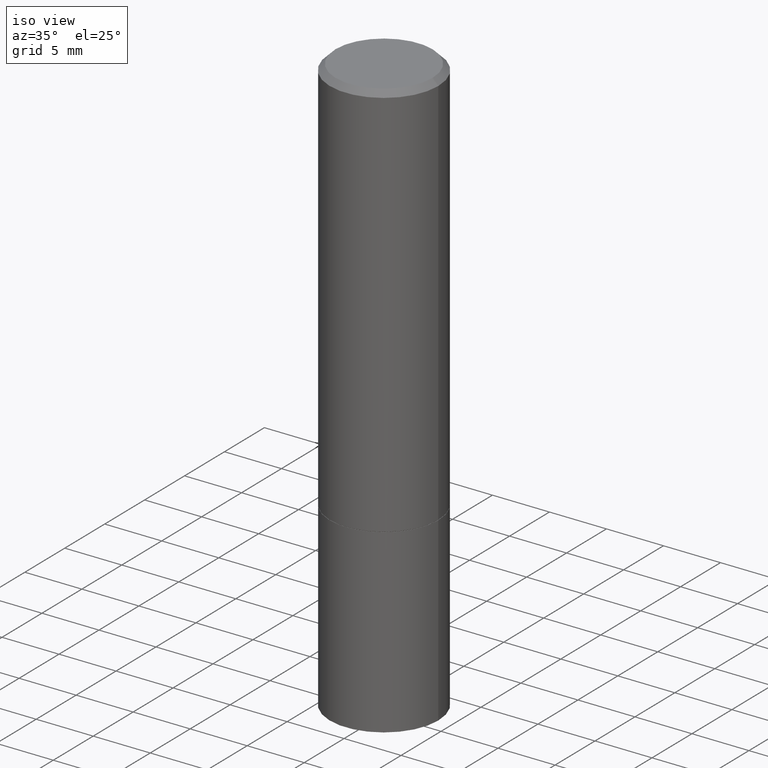
[diagram: clean part render]
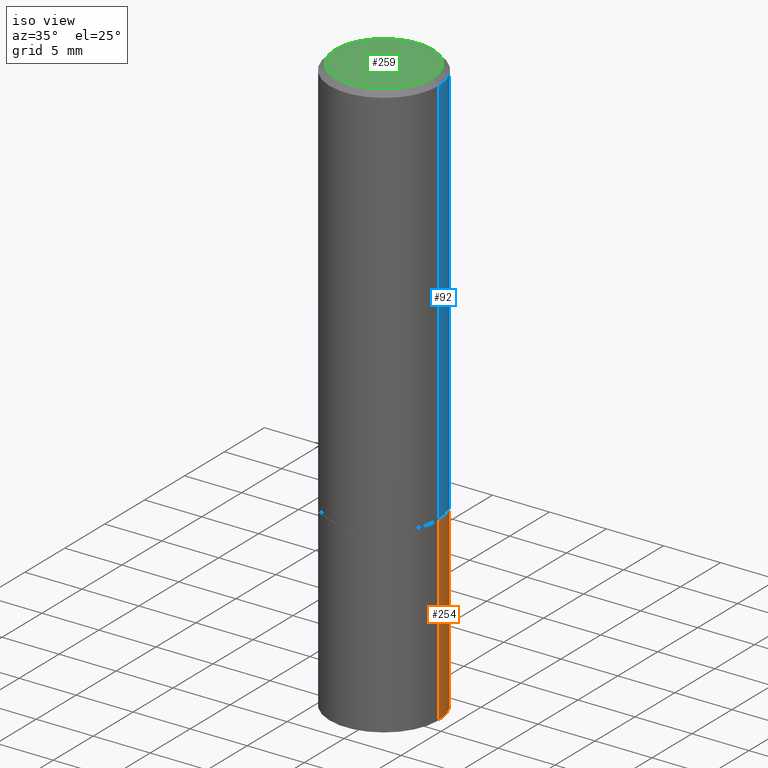
[diagram: same view with three faces highlighted in distinct colors, each labeled with its STEP entity id]
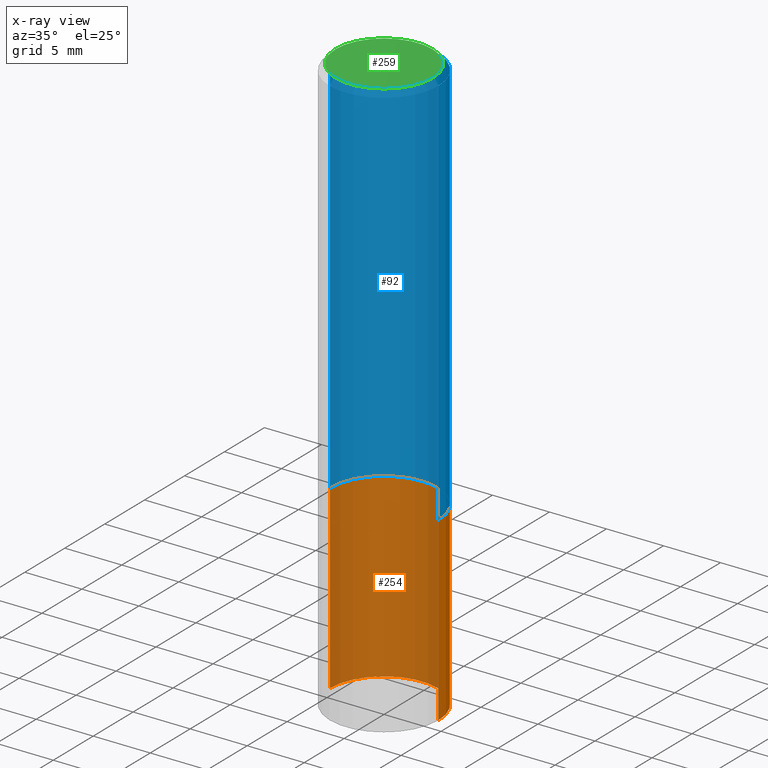
[diagram: x-ray of the same camera — body ghosted, the three highlighted faces saturated]
A machine part, iso view with three faces highlighted in distinct colors.
The next image is the same camera in x-ray (body ghosted, the three faces saturated) — at least one of them is partly hidden behind the body in this view.
Their STEP definitions:

[orange] entity #254 — the highlighted cylindrical surface (partial cylindrical patch) has radius 4.7625 mm, axis along (-0, 0, 1).
#7 = DIRECTION ( 'NONE',  ( 1.000000000000000000, -6.982962677686266711E-15, 0.000000000000000000 ) ) ;
#12 = AXIS2_PLACEMENT_3D ( 'NONE', #157, #112, #7 ) ;
#15 = CARTESIAN_POINT ( 'NONE',  ( -0.1875000000000000278, -4.559607129747620988E-15, -2.000000000000000000 ) ) ;
#46 = CARTESIAN_POINT ( 'NONE',  ( 3.362519608504562260E-29, -4.800786840909324930E-15, -1.375000000000000000 ) ) ;
#51 = DIRECTION ( 'NONE',  ( 1.000000000000000000, -6.982962677686266711E-15, 0.000000000000000000 ) ) ;
#64 = ORIENTED_EDGE ( 'NONE', *, *, #293, .T. ) ;
#75 = VECTOR ( 'NONE', #184, 39.37007874015748143 ) ;
#76 = CARTESIAN_POINT ( 'NONE',  ( 0.000000000000000000, 0.000000000000000000, 0.000000000000000000 ) ) ;
#90 = VERTEX_POINT ( 'NONE', #319 ) ;
#96 = LINE ( 'NONE', #343, #117 ) ;
#98 = VERTEX_POINT ( 'NONE', #15 ) ;
#112 = DIRECTION ( 'NONE',  ( -2.445468806185136597E-29, 3.491481338843145583E-15, 1.000000000000000000 ) ) ;
#117 = VECTOR ( 'NONE', #315, 39.37007874015748143 ) ;
#127 = ORIENTED_EDGE ( 'NONE', *, *, #286, .T. ) ;
#133 = CARTESIAN_POINT ( 'NONE',  ( -0.1875000000000000278, -4.559607129747620988E-15, -1.375000000000000000 ) ) ;
#146 = CIRCLE ( 'NONE', #364, 0.1875000000000000278 ) ;
#157 = CARTESIAN_POINT ( 'NONE',  ( 4.890937612370273194E-29, -6.982962677686291165E-15, -2.000000000000000000 ) ) ;
#159 = FACE_OUTER_BOUND ( 'NONE', #258, .T. ) ;
#160 = CIRCLE ( 'NONE', #12, 0.1875000000000000278 ) ;
#184 = DIRECTION ( 'NONE',  ( -2.445468806185136877E-29, 3.491481338843145188E-15, 1.000000000000000000 ) ) ;
#207 = CARTESIAN_POINT ( 'NONE',  ( -0.1875000000000000278, 1.332267629550188046E-15, -9.223003294227947991E-30 ) ) ;
#214 = DIRECTION ( 'NONE',  ( -2.445468806185136597E-29, 3.491481338843145583E-15, 1.000000000000000000 ) ) ;
#223 = VERTEX_POINT ( 'NONE', #341 ) ;
#235 = DIRECTION ( 'NONE',  ( 1.000000000000000000, -6.982962677686265922E-15, 4.876176775795935793E-29 ) ) ;
#238 = DIRECTION ( 'NONE',  ( -2.445468806185136597E-29, 3.491481338843145583E-15, 1.000000000000000000 ) ) ;
#254 = ADVANCED_FACE ( 'NONE', ( #159 ), #322, .T. ) ;
#258 = EDGE_LOOP ( 'NONE', ( #127, #64, #289, #272 ) ) ;
#272 = ORIENTED_EDGE ( 'NONE', *, *, #342, .F. ) ;
#286 = EDGE_CURVE ( 'NONE', #223, #98, #160, .T. ) ;
#289 = ORIENTED_EDGE ( 'NONE', *, *, #318, .F. ) ;
#293 = EDGE_CURVE ( 'NONE', #98, #333, #345, .T. ) ;
#315 = DIRECTION ( 'NONE',  ( -2.445468806185136877E-29, 3.491481338843145188E-15, 1.000000000000000000 ) ) ;
#318 = EDGE_CURVE ( 'NONE', #90, #333, #146, .T. ) ;
#319 = CARTESIAN_POINT ( 'NONE',  ( 0.1875000000000000278, -6.110092342975500727E-15, -1.375000000000000000 ) ) ;
#322 = CYLINDRICAL_SURFACE ( 'NONE', #357, 0.1875000000000000278 ) ;
#333 = VERTEX_POINT ( 'NONE', #133 ) ;
#341 = CARTESIAN_POINT ( 'NONE',  ( 0.1875000000000000278, -8.292268179752466962E-15, -2.000000000000000000 ) ) ;
#342 = EDGE_CURVE ( 'NONE', #223, #90, #96, .T. ) ;
#343 = CARTESIAN_POINT ( 'NONE',  ( 0.1875000000000000278, -1.309305502066175008E-15, 9.142831454617381013E-30 ) ) ;
#345 = LINE ( 'NONE', #207, #75 ) ;
#357 = AXIS2_PLACEMENT_3D ( 'NONE', #76, #238, #235 ) ;
#364 = AXIS2_PLACEMENT_3D ( 'NONE', #46, #214, #51 ) ;

[blue] entity #92 — the highlighted cylindrical surface (partial cylindrical patch) has radius 4.7625 mm, axis along (-0, 0, 1).
#2 = EDGE_LOOP ( 'NONE', ( #305, #269, #149, #128 ) ) ;
#19 = AXIS2_PLACEMENT_3D ( 'NONE', #52, #167, #22 ) ;
#20 = DIRECTION ( 'NONE',  ( -2.445468806185136877E-29, 3.491481338843145188E-15, 1.000000000000000000 ) ) ;
#22 = DIRECTION ( 'NONE',  ( 1.000000000000000000, -6.982962677686265922E-15, 4.876176775795935793E-29 ) ) ;
#30 = AXIS2_PLACEMENT_3D ( 'NONE', #198, #360, #253 ) ;
#35 = LINE ( 'NONE', #191, #234 ) ;
#38 = VERTEX_POINT ( 'NONE', #80 ) ;
#52 = CARTESIAN_POINT ( 'NONE',  ( 0.000000000000000000, 0.000000000000000000, 0.000000000000000000 ) ) ;
#56 = CARTESIAN_POINT ( 'NONE',  ( 0.1874999999999998335, -1.356173001359024283E-15, -0.02000000000000004205 ) ) ;
#80 = CARTESIAN_POINT ( 'NONE',  ( -0.1874999999999998335, 1.239475875289310724E-15, -0.02000000000000004205 ) ) ;
#84 = VERTEX_POINT ( 'NONE', #56 ) ;
#92 = ADVANCED_FACE ( 'NONE', ( #189 ), #168, .T. ) ;
#105 = EDGE_CURVE ( 'NONE', #84, #38, #177, .T. ) ;
#109 = EDGE_CURVE ( 'NONE', #262, #84, #226, .T. ) ;
#110 = CARTESIAN_POINT ( 'NONE',  ( 0.1875000000000000278, -6.106600861636656931E-15, -1.373999999999999888 ) ) ;
#124 = EDGE_CURVE ( 'NONE', #199, #38, #35, .T. ) ;
#128 = ORIENTED_EDGE ( 'NONE', *, *, #109, .F. ) ;
#148 = CIRCLE ( 'NONE', #338, 0.1875000000000000278 ) ;
#149 = ORIENTED_EDGE ( 'NONE', *, *, #105, .F. ) ;
#154 = DIRECTION ( 'NONE',  ( -2.445468806185136877E-29, 3.491481338843145188E-15, 1.000000000000000000 ) ) ;
#164 = CARTESIAN_POINT ( 'NONE',  ( 3.360074139698377778E-29, -4.797295359570481134E-15, -1.373999999999999888 ) ) ;
#167 = DIRECTION ( 'NONE',  ( -2.445468806185136597E-29, 3.491481338843145583E-15, 1.000000000000000000 ) ) ;
#168 = CYLINDRICAL_SURFACE ( 'NONE', #19, 0.1874999999999999167 ) ;
#171 = CARTESIAN_POINT ( 'NONE',  ( -0.1874999999999999722, -1.101294863623483776E-15, -1.373999999999999888 ) ) ;
#174 = DIRECTION ( 'NONE',  ( 1.000000000000000000, -6.982962677686266711E-15, 0.000000000000000000 ) ) ;
#177 = CIRCLE ( 'NONE', #30, 0.1874999999999998335 ) ;
#181 = VECTOR ( 'NONE', #154, 39.37007874015748143 ) ;
#189 = FACE_OUTER_BOUND ( 'NONE', #2, .T. ) ;
#191 = CARTESIAN_POINT ( 'NONE',  ( -0.1874999999999999167, 1.332267629550187257E-15, -9.223003294227943787E-30 ) ) ;
#198 = CARTESIAN_POINT ( 'NONE',  ( 4.890937612370283668E-31, -6.982962677686305168E-17, -0.02000000000000004205 ) ) ;
#199 = VERTEX_POINT ( 'NONE', #171 ) ;
#200 = CARTESIAN_POINT ( 'NONE',  ( 0.1874999999999999167, -1.309305502066174219E-15, 9.142831454617375408E-30 ) ) ;
#206 = EDGE_CURVE ( 'NONE', #262, #199, #148, .T. ) ;
#226 = LINE ( 'NONE', #200, #181 ) ;
#234 = VECTOR ( 'NONE', #20, 39.37007874015748143 ) ;
#253 = DIRECTION ( 'NONE',  ( 1.000000000000000000, -6.982962677686266711E-15, 0.000000000000000000 ) ) ;
#262 = VERTEX_POINT ( 'NONE', #110 ) ;
#269 = ORIENTED_EDGE ( 'NONE', *, *, #124, .T. ) ;
#305 = ORIENTED_EDGE ( 'NONE', *, *, #206, .T. ) ;
#338 = AXIS2_PLACEMENT_3D ( 'NONE', #164, #351, #174 ) ;
#351 = DIRECTION ( 'NONE',  ( -2.445468806185136597E-29, 3.491481338843145583E-15, 1.000000000000000000 ) ) ;
#360 = DIRECTION ( 'NONE',  ( -2.445468806185136597E-29, 3.491481338843145583E-15, 1.000000000000000000 ) ) ;

[green] entity #259 — the highlighted planar face has unit normal (0, -0, -1).
#17 = DIRECTION ( 'NONE',  ( 1.000000000000000000, -6.982962677686266711E-15, 4.876176775795936914E-29 ) ) ;
#36 = AXIS2_PLACEMENT_3D ( 'NONE', #83, #63, #243 ) ;
#40 = DIRECTION ( 'NONE',  ( 2.438088387897960049E-29, -3.491481338843145188E-15, -1.000000000000000000 ) ) ;
#42 = CIRCLE ( 'NONE', #284, 0.1674999999999998435 ) ;
#53 = DIRECTION ( 'NONE',  ( -2.445468806185136597E-29, 3.491481338843145583E-15, 1.000000000000000000 ) ) ;
#63 = DIRECTION ( 'NONE',  ( -2.445468806185136597E-29, 3.491481338843145583E-15, 1.000000000000000000 ) ) ;
#79 = DIRECTION ( 'NONE',  ( -1.000000000000000000, 6.982962677686265922E-15, -4.876176775795935793E-29 ) ) ;
#83 = CARTESIAN_POINT ( 'NONE',  ( 0.000000000000000000, 0.000000000000000000, 0.000000000000000000 ) ) ;
#101 = EDGE_CURVE ( 'NONE', #271, #102, #42, .T. ) ;
#102 = VERTEX_POINT ( 'NONE', #138 ) ;
#107 = FACE_OUTER_BOUND ( 'NONE', #335, .T. ) ;
#138 = CARTESIAN_POINT ( 'NONE',  ( -0.1674999999999998435, 1.204561061900879864E-15, -8.301862719484106184E-30 ) ) ;
#176 = ORIENTED_EDGE ( 'NONE', *, *, #180, .T. ) ;
#180 = EDGE_CURVE ( 'NONE', #102, #271, #288, .T. ) ;
#190 = CARTESIAN_POINT ( 'NONE',  ( 0.000000000000000000, 0.000000000000000000, 0.000000000000000000 ) ) ;
#195 = AXIS2_PLACEMENT_3D ( 'NONE', #353, #40, #79 ) ;
#243 = DIRECTION ( 'NONE',  ( 1.000000000000000000, -6.982962677686266711E-15, 4.876176775795936914E-29 ) ) ;
#259 = ADVANCED_FACE ( 'NONE', ( #107 ), #291, .F. ) ;
#260 = ORIENTED_EDGE ( 'NONE', *, *, #101, .T. ) ;
#265 = CARTESIAN_POINT ( 'NONE',  ( 0.1674999999999998435, -1.252653207992877302E-15, 8.469775550109232378E-30 ) ) ;
#271 = VERTEX_POINT ( 'NONE', #265 ) ;
#284 = AXIS2_PLACEMENT_3D ( 'NONE', #190, #53, #17 ) ;
#288 = CIRCLE ( 'NONE', #36, 0.1674999999999998435 ) ;
#291 = PLANE ( 'NONE',  #195 ) ;
#335 = EDGE_LOOP ( 'NONE', ( #176, #260 ) ) ;
#353 = CARTESIAN_POINT ( 'NONE',  ( 1.169646248512448609E-15, 0.1674999999999998435, -5.848231242562263753E-16 ) ) ;